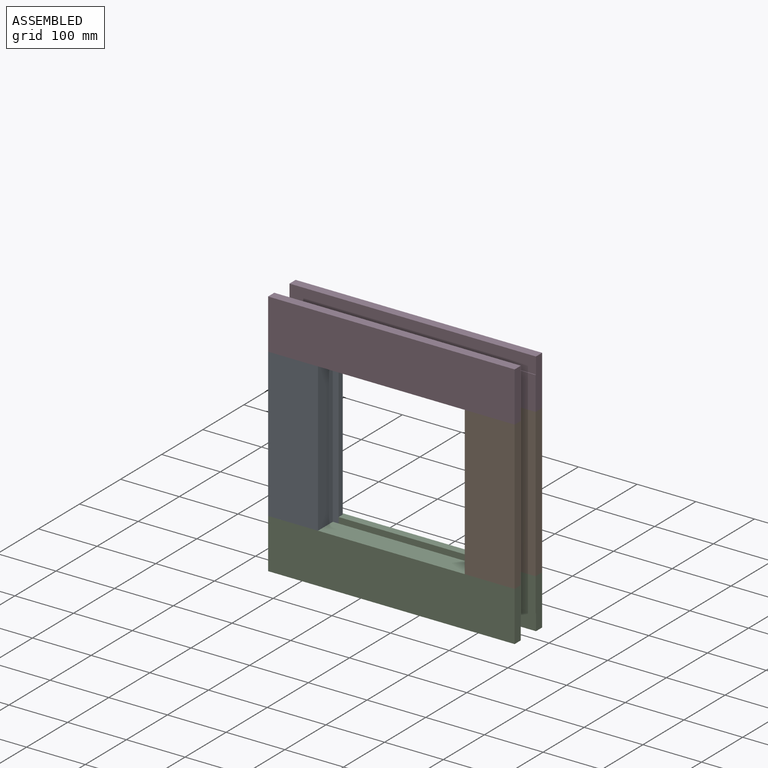
[diagram: assembled view]
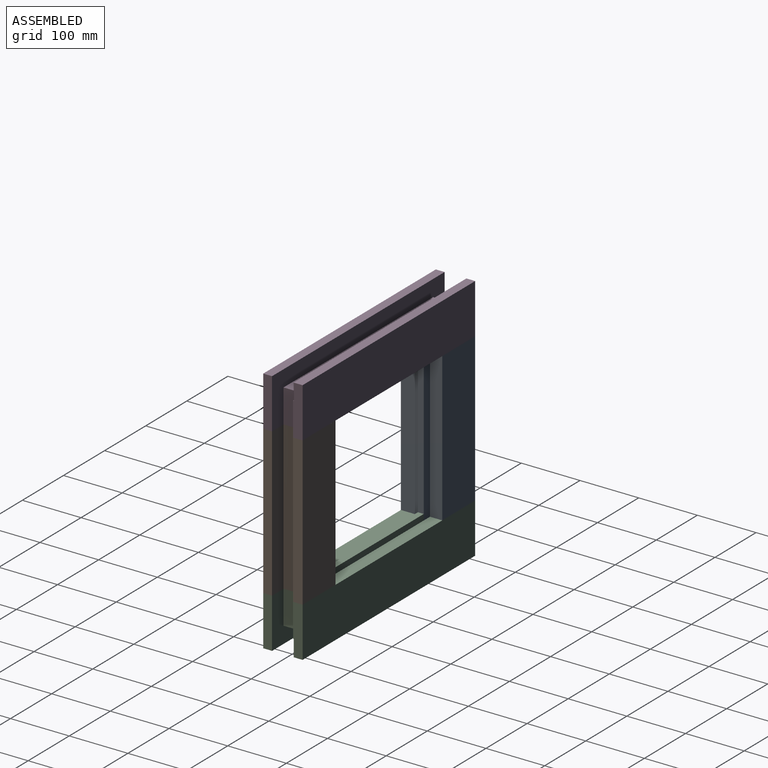
[diagram: assembled view, second angle]
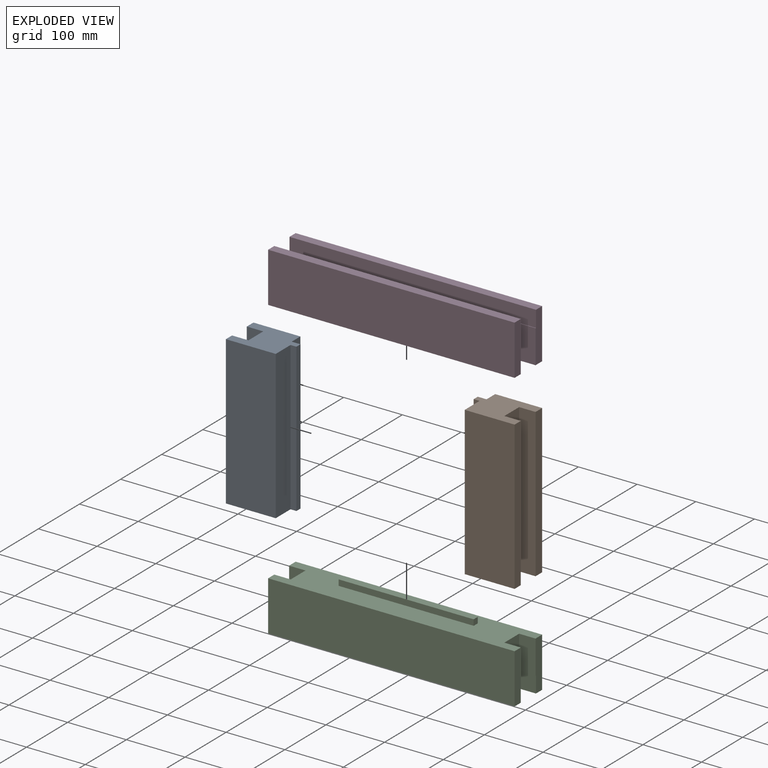
[diagram: exploded view]
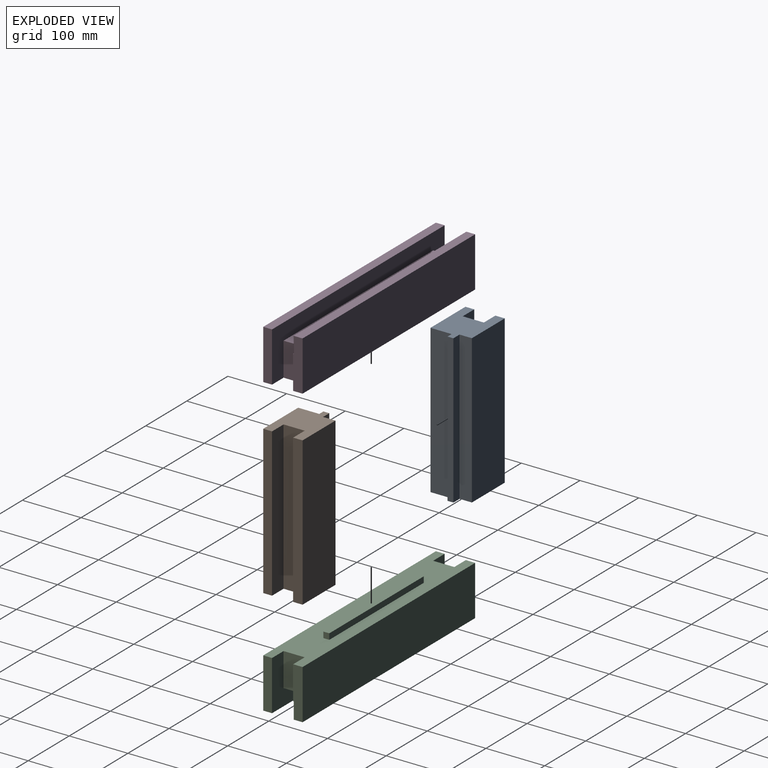
[diagram: exploded view, second angle]
ASSEMBLY  parts=4 mates=9
PART A: 14 faces, bbox 95x67x253 mm
  f0: plane 95x67mm, normal (0,0,1), area 4682mm2, adj f1,f2,f3,f4,f5,f6,f7,f8
  f1: plane 253x15mm, normal (0,1,0), area 3795mm2, adj f0,f2,f12,f13
  f2: plane 253x21mm, normal (1,0,0), area 5313mm2, adj f0,f1,f3,f13
  f3: plane 253x80mm, normal (0,1,0), area 20240mm2, adj f0,f2,f4,f13
  f4: plane 253x16mm, normal (-1,0,0), area 4048mm2, adj f0,f3,f5,f13
  f5: plane 253x28mm, normal (0,-1,0), area 7084mm2, adj f0,f4,f6,f13
  f6: plane 253x36mm, normal (-1,0,0), area 9108mm2, adj f0,f5,f7,f13
  f7: plane 253x28mm, normal (0,1,0), area 7084mm2, adj f0,f6,f8,f13
  f8: plane 253x15mm, normal (-1,0,0), area 3795mm2, adj f0,f7,f9,f13
  f9: plane 253x85mm, normal (0,-1,0), area 21505mm2, adj f0,f8,f10,f13
  f10: plane 253x36mm, normal (1,0,0), area 9108mm2, adj f0,f9,f11,f13
  f11: plane 253x10mm, normal (0,-1,0), area 2530mm2, adj f0,f10,f12,f13
  f12: plane 253x10mm, normal (1,0,0), area 2530mm2, adj f0,f1,f11,f13
  f13: plane 95x67mm, normal (0,0,-1), area 4682mm2, adj f1,f2,f3,f4,f5,f6,f7,f8
PART B: 14 faces, bbox 95x67x253 mm
  f0: plane 95x67mm, normal (0,0,1), area 4682mm2, adj f1,f2,f3,f4,f5,f6,f7,f8
  f1: plane 253x36mm, normal (-1,0,0), area 9108mm2, adj f0,f2,f10,f12
  f2: plane 253x85mm, normal (0,-1,0), area 21505mm2, adj f0,f1,f3,f10
  f3: plane 253x15mm, normal (1,0,0), area 3795mm2, adj f0,f2,f4,f10
  f4: plane 253x28mm, normal (0,1,0), area 7084mm2, adj f0,f3,f5,f10
  f5: plane 253x36mm, normal (1,0,0), area 9108mm2, adj f0,f4,f6,f10
  f6: plane 253x28mm, normal (0,-1,0), area 7084mm2, adj f0,f5,f7,f10
  f7: plane 253x16mm, normal (1,0,0), area 4048mm2, adj f0,f6,f8,f10
  f8: plane 253x80mm, normal (0,1,0), area 20240mm2, adj f0,f7,f9,f10
  f9: plane 253x21mm, normal (-1,0,0), area 5313mm2, adj f0,f8,f10,f11
  f10: plane 95x67mm, normal (0,0,-1), area 4682mm2, adj f1,f2,f3,f4,f5,f6,f7,f8
  f11: plane 253x15mm, normal (0,1,0), area 3795mm2, adj f0,f9,f10,f13
  f12: plane 253x10mm, normal (0,-1,0), area 2530mm2, adj f0,f1,f10,f13
  f13: plane 253x10mm, normal (-1,0,0), area 2530mm2, adj f0,f10,f11,f12
PART C: 21 faces, bbox 420x67x95 mm
  f0: plane 230x10mm, normal (0,0,1), area 2300mm2, adj f1,f2,f19,f20
  f1: plane 230x10mm, normal (0,1,0), area 2300mm2, adj f0,f3,f19,f20
  f2: plane 230x10mm, normal (0,-1,0), area 2300mm2, adj f0,f3,f19,f20
  f3: plane 420x67mm, normal (0,0,1), area 23824mm2, adj f1,f2,f4,f5,f8,f9,f11,f13
  f4: plane 85x16mm, normal (1,0,0), area 1332mm2, adj f3,f6,f7,f8,f12,f15
  f5: plane 85x16mm, normal (-1,0,0), area 1332mm2, adj f3,f6,f7,f8,f12,f17
  f6: plane 420x28mm, normal (0,-1,0), area 11760mm2, adj f4,f5,f7,f12
  f7: plane 420x15mm, normal (0,0,-1), area 6300mm2, adj f4,f5,f6,f8
  f8: plane 420x85mm, normal (0,1,0), area 35700mm2, adj f3,f4,f5,f7
  f9: plane 420x85mm, normal (0,-1,0), area 35700mm2, adj f3,f10,f13,f14
  f10: plane 420x15mm, normal (0,0,-1), area 6300mm2, adj f9,f11,f13,f14
  f11: plane 420x85mm, normal (0,1,0), area 14952mm2, adj f3,f10,f12,f13,f14,f16,f18
  f12: plane 420x37mm, normal (0,0,-1), area 13524mm2, adj f4,f5,f6,f11,f15,f16,f17,f18
  f13: plane 85x15mm, normal (1,0,0), area 1275mm2, adj f3,f9,f10,f11
  f14: plane 85x15mm, normal (-1,0,0), area 1275mm2, adj f3,f9,f10,f11
  f15: plane 57x28mm, normal (0,-1,0), area 1596mm2, adj f3,f4,f12,f16
  f16: plane 57x36mm, normal (1,0,0), area 2052mm2, adj f3,f11,f12,f15
  f17: plane 57x28mm, normal (0,-1,0), area 1596mm2, adj f3,f5,f12,f18
  f18: plane 57x36mm, normal (-1,0,0), area 2052mm2, adj f3,f11,f12,f17
  f19: plane 10x10mm, normal (1,0,0), area 100mm2, adj f0,f1,f2,f3
  f20: plane 10x10mm, normal (-1,0,0), area 100mm2, adj f0,f1,f2,f3
PART D: 21 faces, bbox 420x67x100 mm
  f0: plane 344x10mm, normal (0,0,-1), area 3440mm2, adj f1,f2,f19,f20
  f1: plane 344x15mm, normal (0,-1,0), area 5160mm2, adj f0,f6,f19,f20
  f2: plane 344x15mm, normal (0,1,0), area 5160mm2, adj f0,f6,f19,f20
  f3: plane 57x36mm, normal (1,0,0), area 2052mm2, adj f5,f6,f12,f17
  f4: plane 57x36mm, normal (-1,0,0), area 2052mm2, adj f5,f6,f12,f18
  f5: plane 420x37mm, normal (0,0,1), area 13524mm2, adj f3,f4,f7,f8,f11,f12,f17,f18
  f6: plane 420x67mm, normal (0,0,-1), area 22684mm2, adj f1,f2,f3,f4,f7,f8,f9,f12
  f7: plane 85x16mm, normal (1,0,0), area 1332mm2, adj f5,f6,f9,f10,f11,f17
  f8: plane 85x16mm, normal (-1,0,0), area 1332mm2, adj f5,f6,f9,f10,f11,f18
  f9: plane 420x85mm, normal (0,1,0), area 35700mm2, adj f6,f7,f8,f10
  f10: plane 420x15mm, normal (0,0,1), area 6300mm2, adj f7,f8,f9,f11
  f11: plane 420x28mm, normal (0,-1,0), area 11760mm2, adj f5,f7,f8,f10
  f12: plane 420x85mm, normal (0,1,0), area 14952mm2, adj f3,f4,f5,f6,f13,f15,f16
  f13: plane 420x15mm, normal (0,0,1), area 6300mm2, adj f12,f14,f15,f16
  f14: plane 420x85mm, normal (0,-1,0), area 35700mm2, adj f6,f13,f15,f16
  f15: plane 85x15mm, normal (1,0,0), area 1275mm2, adj f6,f12,f13,f14
  f16: plane 85x15mm, normal (-1,0,0), area 1275mm2, adj f6,f12,f13,f14
  f17: plane 57x28mm, normal (0,-1,0), area 1596mm2, adj f3,f5,f6,f7
  f18: plane 57x28mm, normal (0,-1,0), area 1596mm2, adj f4,f5,f6,f8
  f19: plane 15x10mm, normal (1,0,0), area 150mm2, adj f0,f1,f2,f6
  f20: plane 15x10mm, normal (-1,0,0), area 150mm2, adj f0,f1,f2,f6
PLACE A at identity
PLACE B at identity
PLACE C at identity fixed
PLACE D at identity
MATE planar A.f13 <-> C.f3  axis (0,0,-1) through (20.75,18.25,57)mm
MATE planar D.f6 <-> A.f0  axis (0,0,-1) through (364,0,310)mm
MATE planar B.f10 <-> C.f3  axis (0,0,-1) through (343.25,18.25,57)mm
MATE planar A.f9 <-> C.f9  axis (0,-1,0) through (14.5,-15,183.5)mm
MATE planar B.f5 <-> C.f16  axis (1,0,0) through (364,18,57)mm
MATE planar D.f14 <-> A.f9  axis (0,-1,0) through (-28,-15,352.5)mm
MATE planar A.f6 <-> C.f18  axis (-1,0,0) through (0,18,57)mm
MATE planar D.f4 <-> A.f6  axis (-1,0,0) through (0,18,338.5)mm
MATE planar B.f2 <-> C.f9  axis (0,-1,0) through (392,-15,57)mm
